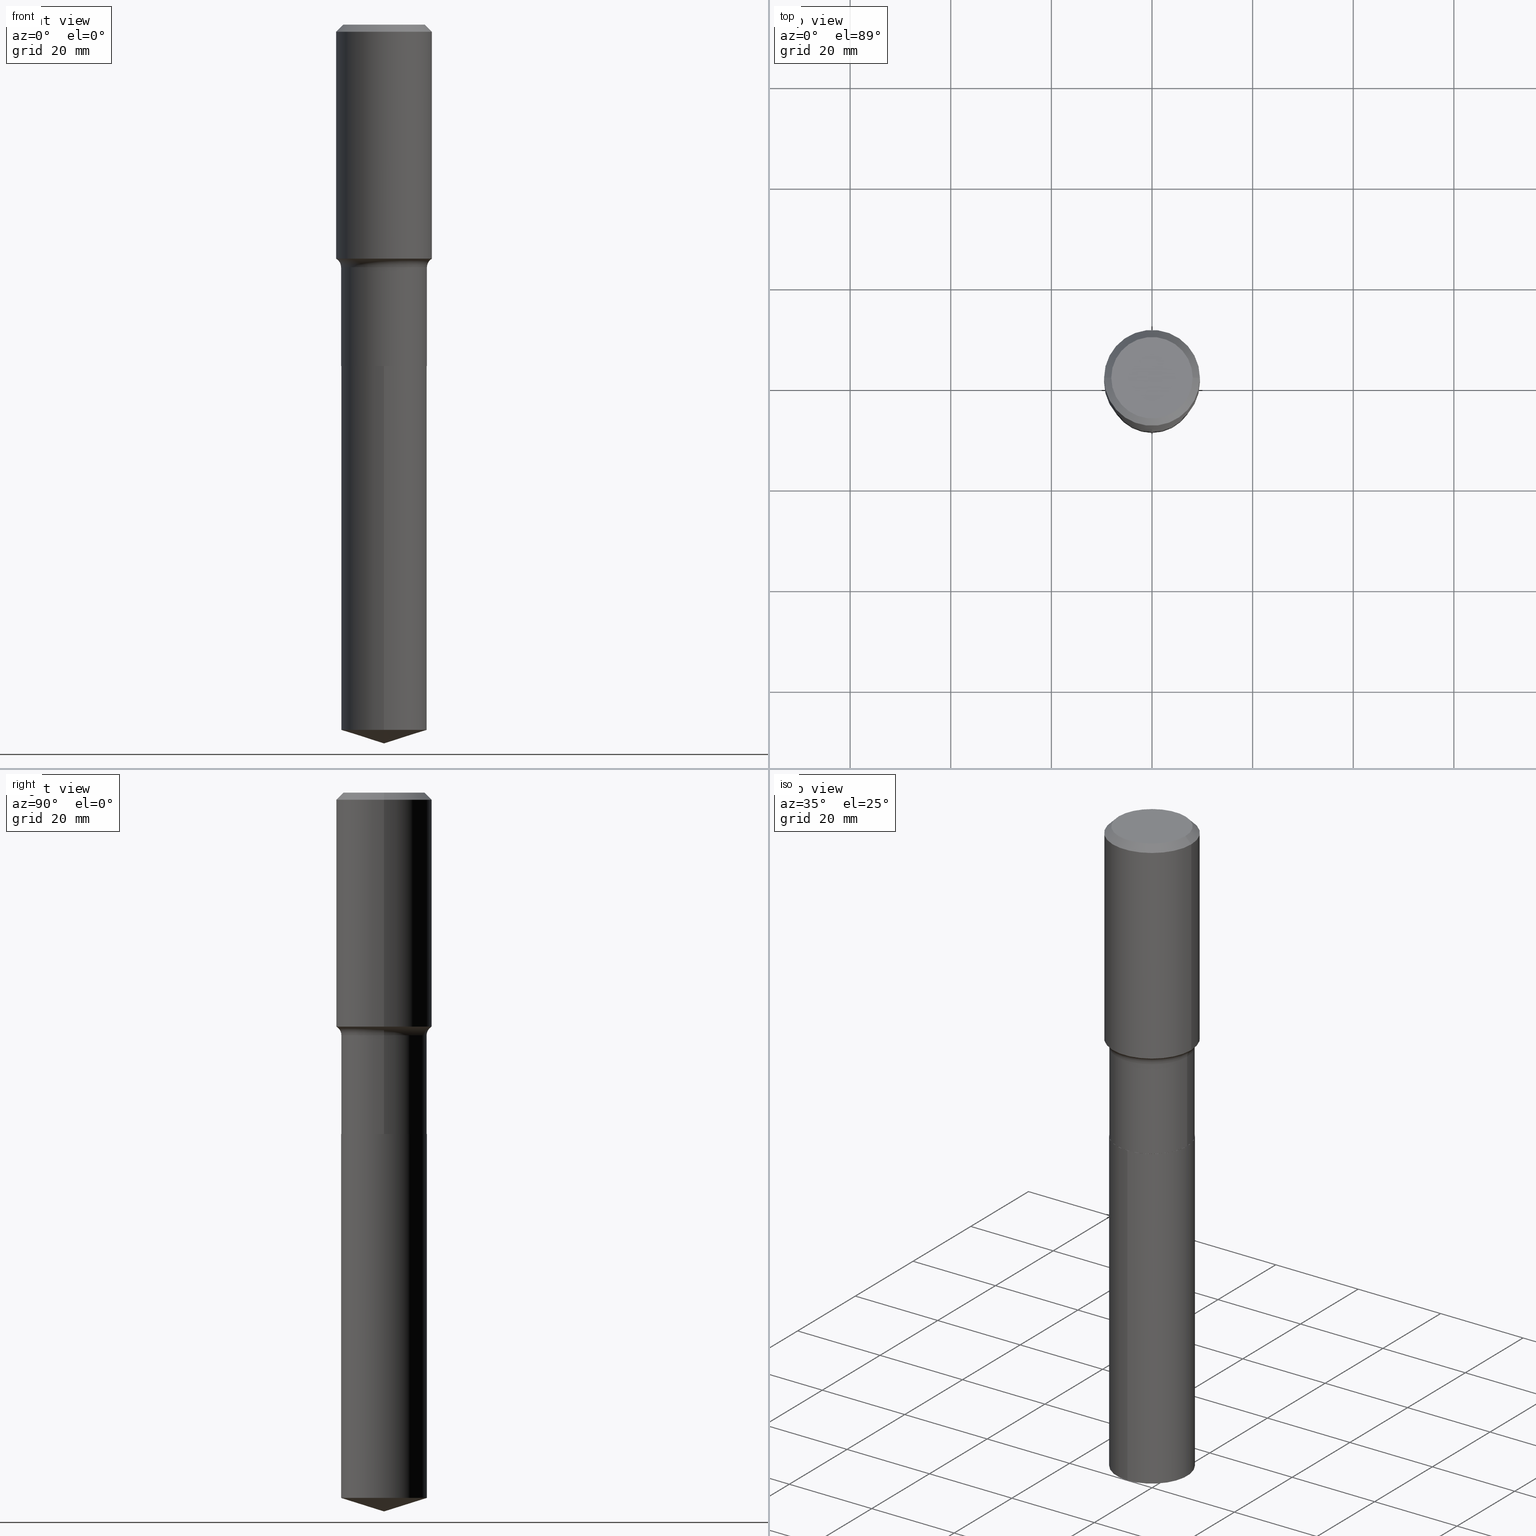
[diagram: canonical four-view strip — front | top / right | iso, engineering-drawing reading convention]
A machine part, canonical four-view strip (front | top / right | iso — engineering-drawing reading convention). The complete STEP part file that produces these views, byte-faithful:
ISO-10303-21;
HEADER;
FILE_DESCRIPTION (( 'STEP AP203' ),
    '1' );
FILE_NAME ('51595.STEP',
    '2024-04-19T13:06:22',
    ( '' ),
    ( '' ),
    'SwSTEP 2.0',
    'SolidWorks 2023',
    '' );
FILE_SCHEMA (( 'CONFIG_CONTROL_DESIGN' ));
ENDSEC;

DATA;
#1 = ORIENTED_EDGE ( 'NONE', *, *, #80, .F. ) ;
#2 = AXIS2_PLACEMENT_3D ( 'NONE', #97, #27, #213 ) ;
#3 = ORIENTED_EDGE ( 'NONE', *, *, #306, .F. ) ;
#4 = ORIENTED_EDGE ( 'NONE', *, *, #365, .T. ) ;
#5 = APPROVAL_ROLE ( '' ) ;
#6 = EDGE_CURVE ( 'NONE', #147, #392, #443, .T. ) ;
#7 = ORIENTED_EDGE ( 'NONE', *, *, #323, .T. ) ;
#8 = EDGE_CURVE ( 'NONE', #392, #299, #445, .T. ) ;
#9 = AXIS2_PLACEMENT_3D ( 'NONE', #368, #441, #215 ) ;
#10 = ORIENTED_EDGE ( 'NONE', *, *, #117, .T. ) ;
#11 = DIRECTION ( 'NONE',  ( -6.982962677686266711E-15, -1.000000000000000000, 3.491481338843145583E-15 ) ) ;
#12 = ORIENTED_EDGE ( 'NONE', *, *, #195, .T. ) ;
#13 = ORIENTED_EDGE ( 'NONE', *, *, #152, .T. ) ;
#14 = VERTEX_POINT ( 'NONE', #41 ) ;
#15 = APPROVAL ( #270, 'UNSPECIFIED' ) ;
#16 = AXIS2_PLACEMENT_3D ( 'NONE', #230, #385, #189 ) ;
#17 = VECTOR ( 'NONE', #106, 39.37007874015748143 ) ;
#18 = ORIENTED_EDGE ( 'NONE', *, *, #306, .T. ) ;
#19 = EDGE_CURVE ( 'NONE', #14, #397, #114, .T. ) ;
#20 = ORIENTED_EDGE ( 'NONE', *, *, #152, .F. ) ;
#21 = ADVANCED_FACE ( 'NONE', ( #231 ), #302, .T. ) ;
#22 = CARTESIAN_POINT ( 'NONE',  ( 2.387068320786190079E-15, 0.3359499999999805975, -5.519075371876107639 ) ) ;
#23 = ORIENTED_EDGE ( 'NONE', *, *, #282, .T. ) ;
#24 = CARTESIAN_POINT ( 'NONE',  ( -0.3359499999999999154, -5.592013982872184177E-15, -1.899200000000000221 ) ) ;
#25 = AXIS2_PLACEMENT_3D ( 'NONE', #203, #209, #355 ) ;
#26 = CONICAL_SURFACE ( 'NONE', #262, 124.8659371009150760, 1.265363707695891682 ) ;
#27 = DIRECTION ( 'NONE',  ( -2.445468806185136597E-29, 3.491481338843145583E-15, 1.000000000000000000 ) ) ;
#28 = DIRECTION ( 'NONE',  ( -2.445468806185136597E-29, 3.491481338843145583E-15, 1.000000000000000000 ) ) ;
#29 = CARTESIAN_POINT ( 'NONE',  ( 1.375576203479147498E-30, -1.963958253099280755E-16, -0.05625000000000032752 ) ) ;
#30 = PRODUCT_DEFINITION ( 'UNKNOWN', '', #94, #354 ) ;
#31 = CARTESIAN_POINT ( 'NONE',  ( 0.3354500000000000259, -1.167132381948485864E-14, -2.671899999999999942 ) ) ;
#32 = TOROIDAL_SURFACE ( 'NONE', #404, 0.4139499999999998736, 0.07799999999999999989 ) ;
#33 = ORIENTED_EDGE ( 'NONE', *, *, #74, .F. ) ;
#34 = DIRECTION ( 'NONE',  ( 1.000000000000000000, -6.982962677686267499E-15, 4.876227444496879000E-29 ) ) ;
#35 = CARTESIAN_POINT ( 'NONE',  ( 1.375576203479147498E-30, -1.963958253099280755E-16, -0.05625000000000032752 ) ) ;
#36 = COORDINATED_UNIVERSAL_TIME_OFFSET ( 5, 0, .BEHIND. ) ;
#37 = EDGE_CURVE ( 'NONE', #153, #14, #43, .T. ) ;
#38 = FACE_OUTER_BOUND ( 'NONE', #211, .T. ) ;
#39 = ORIENTED_EDGE ( 'NONE', *, *, #69, .T. ) ;
#40 = SHAPE_DEFINITION_REPRESENTATION ( #367, #363 ) ;
#41 = CARTESIAN_POINT ( 'NONE',  ( 2.387068320786192052E-15, 0.3359499999999906450, -2.671900000000001274 ) ) ;
#42 = COORDINATED_UNIVERSAL_TIME_OFFSET ( 5, 0, .BEHIND. ) ;
#43 = LINE ( 'NONE', #103, #311 ) ;
#44 = AXIS2_PLACEMENT_3D ( 'NONE', #177, #180, #79 ) ;
#45 = EDGE_LOOP ( 'NONE', ( #3, #145, #425, #39 ) ) ;
#46 = ORIENTED_EDGE ( 'NONE', *, *, #309, .T. ) ;
#47 = LINE ( 'NONE', #427, #474 ) ;
#48 = CIRCLE ( 'NONE', #174, 0.3187499999999999778 ) ;
#49 = ORIENTED_EDGE ( 'NONE', *, *, #395, .F. ) ;
#50 = FACE_OUTER_BOUND ( 'NONE', #55, .T. ) ;
#51 = DIRECTION ( 'NONE',  ( -0.7071067811864026886, 7.493145998869830357E-15, 0.7071067811866923458 ) ) ;
#52 = APPROVAL_STATUS ( 'not_yet_approved' ) ;
#53 = DIRECTION ( 'NONE',  ( 1.000000000000000000, -6.982962677686267499E-15, 4.876227444496879000E-29 ) ) ;
#54 = DIRECTION ( 'NONE',  ( -2.445293720551097683E-29, 3.491732071436344983E-15, 1.000000000000000000 ) ) ;
#55 = EDGE_LOOP ( 'NONE', ( #194, #49 ) ) ;
#56 = AXIS2_PLACEMENT_3D ( 'NONE', #73, #221, #283 ) ;
#57 = LOCAL_TIME ( 9, 6, 22.00000000000000000, #36 ) ;
#58 = LINE ( 'NONE', #89, #473 ) ;
#59 = EDGE_CURVE ( 'NONE', #486, #153, #416, .T. ) ;
#60 = ORIENTED_EDGE ( 'NONE', *, *, #6, .T. ) ;
#61 = CYLINDRICAL_SURFACE ( 'NONE', #2, 0.3359500000000000264 ) ;
#62 = DIRECTION ( 'NONE',  ( -2.438088387897960049E-29, 3.491481338843145188E-15, 1.000000000000000000 ) ) ;
#63 = APPROVAL_DATE_TIME ( #409, #265 ) ;
#64 = DIRECTION ( 'NONE',  ( -2.445293720551097683E-29, 3.491732071436344983E-15, 1.000000000000000000 ) ) ;
#65 = PLANE ( 'NONE',  #269 ) ;
#66 = CIRCLE ( 'NONE', #289, 0.3750000000000000555 ) ;
#67 = CIRCLE ( 'NONE', #351, 0.3359500000000000264 ) ;
#68 = DIRECTION ( 'NONE',  ( 2.445468806185136597E-29, -3.491481338843145583E-15, -1.000000000000000000 ) ) ;
#69 = EDGE_CURVE ( 'NONE', #299, #116, #320, .T. ) ;
#70 = ORIENTED_EDGE ( 'NONE', *, *, #69, .F. ) ;
#71 = DIRECTION ( 'NONE',  ( 1.000000000000000000, -6.982962677686266711E-15, 0.000000000000000000 ) ) ;
#72 = DATE_TIME_ROLE ( 'creation_date' ) ;
#73 = CARTESIAN_POINT ( 'NONE',  ( -7.955031918821654702E-47, 1.135767727816384474E-32, 3.252968060235159383E-18 ) ) ;
#74 = EDGE_CURVE ( 'NONE', #244, #253, #102, .T. ) ;
#75 = FACE_OUTER_BOUND ( 'NONE', #390, .T. ) ;
#76 = CONICAL_SURFACE ( 'NONE', #342, 0.3354500000000000259, 0.7853981633972434429 ) ;
#77 = CIRCLE ( 'NONE', #121, 0.3359499999999999154 ) ;
#78 = EDGE_CURVE ( 'NONE', #450, #299, #149, .T. ) ;
#79 = DIRECTION ( 'NONE',  ( 1.000000000000000000, -6.982962677686267499E-15, 0.000000000000000000 ) ) ;
#80 = EDGE_CURVE ( 'NONE', #392, #147, #300, .T. ) ;
#81 = CYLINDRICAL_SURFACE ( 'NONE', #464, 0.3750000000000001665 ) ;
#82 = DIRECTION ( 'NONE',  ( -6.982962677686265133E-15, -1.000000000000000000, 3.252684022817994463E-15 ) ) ;
#83 = AXIS2_PLACEMENT_3D ( 'NONE', #394, #198, #347 ) ;
#84 = PERSON_AND_ORGANIZATION ( #146, #274 ) ;
#85 = APPROVAL_ROLE ( '' ) ;
#86 = CARTESIAN_POINT ( 'NONE',  ( -0.3750000000000000555, 2.422215178822422188E-15, -0.05625000000000032752 ) ) ;
#87 = VECTOR ( 'NONE', #375, 39.37007874015748143 ) ;
#88 = CC_DESIGN_SECURITY_CLASSIFICATION ( #444, ( #94 ) ) ;
#89 = CARTESIAN_POINT ( 'NONE',  ( -0.3354500000000000259, -6.945373382147743700E-15, -2.671899999999999942 ) ) ;
#90 = CALENDAR_DATE ( 2024, 19, 4 ) ;
#91 = CYLINDRICAL_SURFACE ( 'NONE', #400, 0.3359500000000000264 ) ;
#92 = ADVANCED_FACE ( 'NONE', ( #131 ), #191, .F. ) ;
#93 = CIRCLE ( 'NONE', #199, 0.3354500000000000259 ) ;
#94 = PRODUCT_DEFINITION_FORMATION_WITH_SPECIFIED_SOURCE ( 'ANY', '', #434, .NOT_KNOWN. ) ;
#95 = DIRECTION ( 'NONE',  ( -6.982962677686265922E-15, -1.000000000000000000, 3.500519750498704038E-15 ) ) ;
#96 = LINE ( 'NONE', #357, #185 ) ;
#97 = CARTESIAN_POINT ( 'NONE',  ( 0.000000000000000000, 0.000000000000000000, 0.000000000000000000 ) ) ;
#98 = DIRECTION ( 'NONE',  ( 1.000000000000000000, -6.982962677686266711E-15, 0.000000000000000000 ) ) ;
#99 = CC_DESIGN_DATE_AND_TIME_ASSIGNMENT ( #181, #388, ( #444 ) ) ;
#100 = FACE_OUTER_BOUND ( 'NONE', #475, .T. ) ;
#101 = PRODUCT_RELATED_PRODUCT_CATEGORY ( 'detail', '', ( #434 ) ) ;
#102 = CIRCLE ( 'NONE', #196, 0.3359500000000000264 ) ;
#103 = CARTESIAN_POINT ( 'NONE',  ( 2.387068320786121448E-15, 0.3359499999999906450, -2.671900000000001274 ) ) ;
#104 = DIRECTION ( 'NONE',  ( -2.445468806185136597E-29, 3.491481338843145583E-15, 1.000000000000000000 ) ) ;
#105 = FACE_OUTER_BOUND ( 'NONE', #369, .T. ) ;
#106 = DIRECTION ( 'NONE',  ( -2.445468806185136877E-29, 3.491481338843145188E-15, 1.000000000000000000 ) ) ;
#107 = DIRECTION ( 'NONE',  ( -6.982962677686265133E-15, -1.000000000000000000, 3.252684022817994463E-15 ) ) ;
#108 = SECURITY_CLASSIFICATION_LEVEL ( 'unclassified' ) ;
#109 = ADVANCED_FACE ( 'NONE', ( #50 ), #430, .F. ) ;
#110 = CC_DESIGN_APPROVAL ( #265, ( #30 ) ) ;
#111 = VERTEX_POINT ( 'NONE', #371 ) ;
#112 = CC_DESIGN_PERSON_AND_ORGANIZATION_ASSIGNMENT ( #267, #383, ( #444 ) ) ;
#113 = ORIENTED_EDGE ( 'NONE', *, *, #129, .F. ) ;
#114 = CIRCLE ( 'NONE', #148, 0.3359500000000000264 ) ;
#115 = ORIENTED_EDGE ( 'NONE', *, *, #59, .F. ) ;
#116 = VERTEX_POINT ( 'NONE', #163 ) ;
#117 = EDGE_CURVE ( 'NONE', #457, #153, #331, .T. ) ;
#118 = ORIENTED_EDGE ( 'NONE', *, *, #478, .T. ) ;
#119 = DIRECTION ( 'NONE',  ( -1.000000000000000000, 6.982962677686265922E-15, 0.000000000000000000 ) ) ;
#120 = AXIS2_PLACEMENT_3D ( 'NONE', #35, #490, #119 ) ;
#121 = AXIS2_PLACEMENT_3D ( 'NONE', #256, #268, #178 ) ;
#122 = CARTESIAN_POINT ( 'NONE',  ( 6.534048103246065700E-29, -9.328888989255000747E-15, -2.671899999999999942 ) ) ;
#123 = CARTESIAN_POINT ( 'NONE',  ( -0.3750000000000003886, -3.730535895525183379E-15, -1.831621175653907807 ) ) ;
#124 = DIRECTION ( 'NONE',  ( -2.445468806185136597E-29, 3.491481338843145583E-15, 1.000000000000000000 ) ) ;
#125 = APPROVAL_ROLE ( '' ) ;
#126 = LINE ( 'NONE', #161, #362 ) ;
#127 =( NAMED_UNIT ( * ) SI_UNIT ( $, .STERADIAN. ) SOLID_ANGLE_UNIT ( ) );
#128 = MECHANICAL_CONTEXT ( 'NONE', #480, 'mechanical' ) ;
#129 = EDGE_CURVE ( 'NONE', #159, #244, #488, .T. ) ;
#130 = CARTESIAN_POINT ( 'NONE',  ( 1.375576203479147498E-30, -1.963958253099280755E-16, -0.05625000000000032752 ) ) ;
#131 = FACE_OUTER_BOUND ( 'NONE', #257, .T. ) ;
#132 = CIRCLE ( 'NONE', #273, 0.3359500000000000264 ) ;
#133 =( GEOMETRIC_REPRESENTATION_CONTEXT ( 3 ) GLOBAL_UNCERTAINTY_ASSIGNED_CONTEXT ( ( #170 ) ) GLOBAL_UNIT_ASSIGNED_CONTEXT ( ( #248, #187, #127 ) ) REPRESENTATION_CONTEXT ( 'NONE', 'WORKASPACE' ) );
#134 = CARTESIAN_POINT ( 'NONE',  ( 6.534048103246065700E-29, -9.328888989255000747E-15, -2.671899999999999942 ) ) ;
#135 = ADVANCED_FACE ( 'NONE', ( #100 ), #32, .F. ) ;
#136 = PERSON_AND_ORGANIZATION ( #146, #274 ) ;
#137 = FACE_OUTER_BOUND ( 'NONE', #295, .T. ) ;
#138 = PERSON_AND_ORGANIZATION_ROLE ( 'creator' ) ;
#139 = CALENDAR_DATE ( 2024, 19, 4 ) ;
#140 = CIRCLE ( 'NONE', #373, 0.3359500000000000264 ) ;
#141 = APPROVAL_PERSON_ORGANIZATION ( #84, #15, #5 ) ;
#142 = EDGE_LOOP ( 'NONE', ( #435, #324, #151, #235 ) ) ;
#143 = EDGE_LOOP ( 'NONE', ( #346, #18, #13, #160 ) ) ;
#144 = CALENDAR_DATE ( 2024, 19, 4 ) ;
#145 = ORIENTED_EDGE ( 'NONE', *, *, #429, .F. ) ;
#146 = PERSON ( 'UNSPECIFIED', 'UNSPECIFIED', 'UNSPECIFIED', ('UNSPECIFIED'), ('UNSPECIFIED'), ('UNSPECIFIED') ) ;
#147 = VERTEX_POINT ( 'NONE', #261 ) ;
#148 = AXIS2_PLACEMENT_3D ( 'NONE', #452, #263, #82 ) ;
#149 = LINE ( 'NONE', #86, #387 ) ;
#150 = CIRCLE ( 'NONE', #217, 0.3187499999999999778 ) ;
#151 = ORIENTED_EDGE ( 'NONE', *, *, #129, .T. ) ;
#152 = EDGE_CURVE ( 'NONE', #116, #299, #66, .T. ) ;
#153 = VERTEX_POINT ( 'NONE', #22 ) ;
#154 = DIRECTION ( 'NONE',  ( -2.445468806185136597E-29, 3.491481338843145583E-15, 1.000000000000000000 ) ) ;
#155 = AXIS2_PLACEMENT_3D ( 'NONE', #122, #62, #303 ) ;
#156 = LOCAL_TIME ( 9, 6, 22.00000000000000000, #227 ) ;
#157 = DIRECTION ( 'NONE',  ( -2.445293720551097683E-29, 3.491732071436344983E-15, 1.000000000000000000 ) ) ;
#158 = CC_DESIGN_PERSON_AND_ORGANIZATION_ASSIGNMENT ( #438, #481, ( #434 ) ) ;
#159 = VERTEX_POINT ( 'NONE', #483 ) ;
#160 = ORIENTED_EDGE ( 'NONE', *, *, #78, .F. ) ;
#161 = CARTESIAN_POINT ( 'NONE',  ( 0.3359500000000000264, -2.345926311568701298E-15, 1.638151587828644602E-29 ) ) ;
#162 = DIRECTION ( 'NONE',  ( -6.982962677686265133E-15, -1.000000000000000000, 3.252684022817994463E-15 ) ) ;
#163 = CARTESIAN_POINT ( 'NONE',  ( 0.3750000000000000555, -2.815006829442278240E-15, -0.05625000000000032752 ) ) ;
#164 = DIRECTION ( 'NONE',  ( -2.445468806185136597E-29, 3.491481338843145583E-15, 1.000000000000000000 ) ) ;
#165 = ADVANCED_FACE ( 'NONE', ( #477 ), #76, .T. ) ;
#166 = AXIS2_PLACEMENT_3D ( 'NONE', #134, #124, #287 ) ;
#167 = ORIENTED_EDGE ( 'NONE', *, *, #74, .T. ) ;
#168 = LOCAL_TIME ( 9, 6, 22.00000000000000000, #42 ) ;
#169 = PERSON_AND_ORGANIZATION ( #146, #274 ) ;
#170 = UNCERTAINTY_MEASURE_WITH_UNIT (LENGTH_MEASURE( 1.000000000000000082E-05 ), #248, 'distance_accuracy_value', 'NONE');
#171 = FACE_OUTER_BOUND ( 'NONE', #460, .T. ) ;
#172 = DIRECTION ( 'NONE',  ( 1.000000000000000000, -6.982962677686265922E-15, 0.000000000000000000 ) ) ;
#173 = AXIS2_PLACEMENT_3D ( 'NONE', #304, #448, #419 ) ;
#174 = AXIS2_PLACEMENT_3D ( 'NONE', #224, #379, #34 ) ;
#175 = EDGE_CURVE ( 'NONE', #159, #403, #350, .T. ) ;
#176 = CARTESIAN_POINT ( 'NONE',  ( -8.251616133150385207E-28, 1.178294436225684148E-13, 33.74507874015748143 ) ) ;
#177 = CARTESIAN_POINT ( 'NONE',  ( 4.479172449809777762E-29, -6.395071154625561442E-15, -1.831621175653907807 ) ) ;
#178 = DIRECTION ( 'NONE',  ( 1.000000000000000000, -6.982962677686263555E-15, 0.000000000000000000 ) ) ;
#179 = CARTESIAN_POINT ( 'NONE',  ( 6.534048103246065700E-29, -9.328888989255000747E-15, -2.671899999999999942 ) ) ;
#180 = DIRECTION ( 'NONE',  ( -2.445468806185136597E-29, 3.491481338843145583E-15, 1.000000000000000000 ) ) ;
#181 = DATE_AND_TIME ( #139, #57 ) ;
#182 = ADVANCED_FACE ( 'NONE', ( #378 ), #420, .T. ) ;
#183 = COORDINATED_UNIVERSAL_TIME_OFFSET ( 5, 0, .BEHIND. ) ;
#184 = CC_DESIGN_PERSON_AND_ORGANIZATION_ASSIGNMENT ( #136, #138, ( #94 ) ) ;
#185 = VECTOR ( 'NONE', #413, 39.37007874015748854 ) ;
#186 = AXIS2_PLACEMENT_3D ( 'NONE', #352, #11, #330 ) ;
#187 =( NAMED_UNIT ( * ) PLANE_ANGLE_UNIT ( ) SI_UNIT ( $, .RADIAN. ) );
#188 = DIRECTION ( 'NONE',  ( 1.000000000000000000, -6.982962677686266711E-15, 4.876176775795935793E-29 ) ) ;
#189 = DIRECTION ( 'NONE',  ( 1.000000000000000000, -6.982962677686265922E-15, 0.000000000000000000 ) ) ;
#190 = VERTEX_POINT ( 'NONE', #200 ) ;
#191 = PLANE ( 'NONE',  #56 ) ;
#192 = DIRECTION ( 'NONE',  ( -2.445468806185136597E-29, 3.491481338843145583E-15, 1.000000000000000000 ) ) ;
#193 = LINE ( 'NONE', #459, #226 ) ;
#194 = ORIENTED_EDGE ( 'NONE', *, *, #175, .F. ) ;
#195 = EDGE_CURVE ( 'NONE', #153, #457, #140, .T. ) ;
#196 = AXIS2_PLACEMENT_3D ( 'NONE', #319, #192, #277 ) ;
#197 = DIRECTION ( 'NONE',  ( 0.7071067811865456854, -7.319954787623249734E-15, -0.7071067811865493491 ) ) ;
#198 = DIRECTION ( 'NONE',  ( -2.445468806185136597E-29, 3.491481338843145583E-15, 1.000000000000000000 ) ) ;
#199 = AXIS2_PLACEMENT_3D ( 'NONE', #219, #254, #329 ) ;
#200 = CARTESIAN_POINT ( 'NONE',  ( 0.3187499999999999778, -2.477933155631963807E-15, 6.505936120486764667E-18 ) ) ;
#201 = ORIENTED_EDGE ( 'NONE', *, *, #8, .T. ) ;
#202 = ORIENTED_EDGE ( 'NONE', *, *, #291, .T. ) ;
#203 = CARTESIAN_POINT ( 'NONE',  ( 0.000000000000000000, 0.000000000000000000, 0.000000000000000000 ) ) ;
#204 = EDGE_CURVE ( 'NONE', #392, #401, #251, .T. ) ;
#205 = CC_DESIGN_PERSON_AND_ORGANIZATION_ASSIGNMENT ( #305, #491, ( #94 ) ) ;
#206 = VECTOR ( 'NONE', #313, 39.37007874015748143 ) ;
#207 = CIRCLE ( 'NONE', #186, 0.07800000000000002764 ) ;
#208 = ORIENTED_EDGE ( 'NONE', *, *, #259, .T. ) ;
#209 = DIRECTION ( 'NONE',  ( -2.445468806185136597E-29, 3.491481338843145583E-15, 1.000000000000000000 ) ) ;
#210 = CARTESIAN_POINT ( 'NONE',  ( 6.534048103246065700E-29, -9.328888989255000747E-15, -2.671899999999999942 ) ) ;
#211 = EDGE_LOOP ( 'NONE', ( #60, #201, #20, #423 ) ) ;
#212 = ADVANCED_FACE ( 'NONE', ( #75 ), #225, .T. ) ;
#213 = DIRECTION ( 'NONE',  ( 1.000000000000000000, -6.982962677686265922E-15, 4.876176775795935232E-29 ) ) ;
#214 = ORIENTED_EDGE ( 'NONE', *, *, #19, .T. ) ;
#215 = DIRECTION ( 'NONE',  ( -6.982962677686265133E-15, -1.000000000000000000, 3.252684022817994463E-15 ) ) ;
#216 = CONICAL_SURFACE ( 'NONE', #120, 0.3750000000000000555, 0.7853981633974457255 ) ;
#217 = AXIS2_PLACEMENT_3D ( 'NONE', #359, #402, #53 ) ;
#218 = CARTESIAN_POINT ( 'NONE',  ( 6.532825368842972898E-29, -9.327143248585578454E-15, -2.671399999999999775 ) ) ;
#219 = CARTESIAN_POINT ( 'NONE',  ( 6.534048103246065700E-29, -9.328888989255000747E-15, -2.671899999999999942 ) ) ;
#220 = CARTESIAN_POINT ( 'NONE',  ( 6.534048103246065700E-29, -9.328888989255000747E-15, -2.671899999999999942 ) ) ;
#221 = DIRECTION ( 'NONE',  ( 2.438088387897960049E-29, -3.491481338843145188E-15, -1.000000000000000000 ) ) ;
#222 = DIRECTION ( 'NONE',  ( 1.000000000000000000, -6.982962677686265922E-15, 4.883557194083112901E-29 ) ) ;
#223 = DIRECTION ( 'NONE',  ( -2.445468806185136877E-29, 3.491481338843145188E-15, 1.000000000000000000 ) ) ;
#224 = CARTESIAN_POINT ( 'NONE',  ( -1.591006383764330940E-46, 2.271535455632768948E-32, 6.505936120470318766E-18 ) ) ;
#225 = CYLINDRICAL_SURFACE ( 'NONE', #360, 0.3359500000000000264 ) ;
#226 = VECTOR ( 'NONE', #239, 39.37007874015748143 ) ;
#227 = COORDINATED_UNIVERSAL_TIME_OFFSET ( 5, 0, .BEHIND. ) ;
#228 = CARTESIAN_POINT ( 'NONE',  ( 0.000000000000000000, 0.000000000000000000, 0.000000000000000000 ) ) ;
#229 = APPROVAL_DATE_TIME ( #489, #485 ) ;
#230 = CARTESIAN_POINT ( 'NONE',  ( 1.375576203479147498E-30, -1.963958253099280755E-16, -0.05625000000000032752 ) ) ;
#231 = FACE_OUTER_BOUND ( 'NONE', #428, .T. ) ;
#232 = ORIENTED_EDGE ( 'NONE', *, *, #19, .F. ) ;
#233 = LOCAL_TIME ( 9, 6, 22.00000000000000000, #183 ) ;
#234 = ADVANCED_FACE ( 'NONE', ( #339 ), #216, .T. ) ;
#235 = ORIENTED_EDGE ( 'NONE', *, *, #259, .F. ) ;
#236 = ORIENTED_EDGE ( 'NONE', *, *, #323, .F. ) ;
#237 = MANIFOLD_SOLID_BREP ( 'Body-Move/Copy2[2]', #399 ) ;
#238 = DIRECTION ( 'NONE',  ( -0.7071067811865456854, 2.468850131082237733E-15, -0.7071067811865493491 ) ) ;
#239 = DIRECTION ( 'NONE',  ( -2.445468806185136877E-29, 3.491481338843145188E-15, 1.000000000000000000 ) ) ;
#240 = ORIENTED_EDGE ( 'NONE', *, *, #411, .T. ) ;
#241 = DIMENSIONAL_EXPONENTS ( 1.000000000000000000, 0.000000000000000000, 0.000000000000000000, 0.000000000000000000, 0.000000000000000000, 0.000000000000000000, 0.000000000000000000 ) ;
#242 = CIRCLE ( 'NONE', #463, 0.3359499999999999154 ) ;
#243 = APPROVAL_PERSON_ORGANIZATION ( #315, #485, #85 ) ;
#244 = VERTEX_POINT ( 'NONE', #280 ) ;
#245 = EDGE_CURVE ( 'NONE', #403, #253, #58, .T. ) ;
#246 = ORIENTED_EDGE ( 'NONE', *, *, #37, .T. ) ;
#247 = ORIENTED_EDGE ( 'NONE', *, *, #255, .T. ) ;
#248 =( CONVERSION_BASED_UNIT ( 'INCH', #284 ) LENGTH_UNIT ( ) NAMED_UNIT ( #241 ) );
#249 = DIRECTION ( 'NONE',  ( 6.982962677686265922E-15, 1.000000000000000000, -3.491732071436345377E-15 ) ) ;
#250 = CARTESIAN_POINT ( 'NONE',  ( 1.349622816140244701E-28, -1.927046254823850820E-14, -5.519075371876106750 ) ) ;
#251 = CIRCLE ( 'NONE', #173, 0.07800000000000002764 ) ;
#252 = ORIENTED_EDGE ( 'NONE', *, *, #431, .F. ) ;
#253 = VERTEX_POINT ( 'NONE', #466 ) ;
#254 = DIRECTION ( 'NONE',  ( -2.445468806185136597E-29, 3.491481338843145583E-15, 1.000000000000000000 ) ) ;
#255 = EDGE_CURVE ( 'NONE', #486, #457, #96, .T. ) ;
#256 = CARTESIAN_POINT ( 'NONE',  ( 4.644434356706812509E-29, -6.631021358730902635E-15, -1.899200000000000221 ) ) ;
#257 = EDGE_LOOP ( 'NONE', ( #349, #202 ) ) ;
#258 = CARTESIAN_POINT ( 'NONE',  ( -2.345926311568635428E-15, -0.3359500000000093523, -2.671899999999999054 ) ) ;
#259 = EDGE_CURVE ( 'NONE', #253, #244, #132, .T. ) ;
#260 = PERSON_AND_ORGANIZATION_ROLE ( 'creator' ) ;
#261 = CARTESIAN_POINT ( 'NONE',  ( 0.3750000000000003886, -9.013682158757916981E-15, -1.831621175653907807 ) ) ;
#262 = AXIS2_PLACEMENT_3D ( 'NONE', #476, #64, #370 ) ;
#263 = DIRECTION ( 'NONE',  ( -2.445293720551097683E-29, 3.491732071436344983E-15, 1.000000000000000000 ) ) ;
#264 = CARTESIAN_POINT ( 'NONE',  ( 0.000000000000000000, 0.000000000000000000, 0.000000000000000000 ) ) ;
#265 = APPROVAL ( #52, 'UNSPECIFIED' ) ;
#266 = DIRECTION ( 'NONE',  ( 6.776566513254256560E-15, 0.9537169507482287090, 0.3007057995042671794 ) ) ;
#267 = PERSON_AND_ORGANIZATION ( #146, #274 ) ;
#268 = DIRECTION ( 'NONE',  ( -2.445468806185136597E-29, 3.491481338843145583E-15, 1.000000000000000000 ) ) ;
#269 = AXIS2_PLACEMENT_3D ( 'NONE', #285, #433, #249 ) ;
#270 = APPROVAL_STATUS ( 'not_yet_approved' ) ;
#271 = ORIENTED_EDGE ( 'NONE', *, *, #431, .T. ) ;
#272 = LINE ( 'NONE', #487, #17 ) ;
#273 = AXIS2_PLACEMENT_3D ( 'NONE', #218, #28, #442 ) ;
#274 = ORGANIZATION ( 'UNSPECIFIED', 'UNSPECIFIED', '' ) ;
#275 = ORIENTED_EDGE ( 'NONE', *, *, #365, .F. ) ;
#276 = APPROVAL_DATE_TIME ( #393, #15 ) ;
#277 = DIRECTION ( 'NONE',  ( 1.000000000000000000, -6.982962677686265133E-15, 0.000000000000000000 ) ) ;
#278 = APPROVAL_STATUS ( 'not_yet_approved' ) ;
#279 = ADVANCED_FACE ( 'NONE', ( #171 ), #482, .T. ) ;
#280 = CARTESIAN_POINT ( 'NONE',  ( 0.3359500000000000264, -1.167306956015427936E-14, -2.671399999999999775 ) ) ;
#281 = AXIS2_PLACEMENT_3D ( 'NONE', #228, #384, #340 ) ;
#282 = EDGE_CURVE ( 'NONE', #111, #401, #242, .T. ) ;
#283 = DIRECTION ( 'NONE',  ( -1.000000000000000000, 6.982962677686265922E-15, -4.876176775795935793E-29 ) ) ;
#284 = LENGTH_MEASURE_WITH_UNIT ( LENGTH_MEASURE( 0.02539999999999999897 ), #447 );
#285 = CARTESIAN_POINT ( 'NONE',  ( 6.534048103246065700E-29, -9.328888989255000747E-15, -2.671899999999999942 ) ) ;
#286 = DIRECTION ( 'NONE',  ( 1.000000000000000000, -6.982962677686263555E-15, 0.000000000000000000 ) ) ;
#287 = DIRECTION ( 'NONE',  ( 1.000000000000000000, -6.982962677686266711E-15, 0.000000000000000000 ) ) ;
#288 = EDGE_CURVE ( 'NONE', #244, #111, #126, .T. ) ;
#289 = AXIS2_PLACEMENT_3D ( 'NONE', #29, #470, #172 ) ;
#290 = CONICAL_SURFACE ( 'NONE', #343, 124.8659371009150760, 1.265363707695891682 ) ;
#291 = EDGE_CURVE ( 'NONE', #190, #450, #150, .T. ) ;
#292 = EDGE_LOOP ( 'NONE', ( #1, #449, #271, #461 ) ) ;
#293 = CARTESIAN_POINT ( 'NONE',  ( -2.345926311568635428E-15, -0.3359500000000093523, -2.671899999999999054 ) ) ;
#294 = CARTESIAN_POINT ( 'NONE',  ( 6.534048103246065700E-29, -9.328888989255000747E-15, -2.671899999999999942 ) ) ;
#295 = EDGE_LOOP ( 'NONE', ( #462, #405, #432 ) ) ;
#296 = CARTESIAN_POINT ( 'NONE',  ( -0.3354500000000000259, -6.942724154973632499E-15, -2.671899999999999942 ) ) ;
#297 = PERSON_AND_ORGANIZATION ( #146, #274 ) ;
#298 = CC_DESIGN_DATE_AND_TIME_ASSIGNMENT ( #418, #72, ( #30 ) ) ;
#299 = VERTEX_POINT ( 'NONE', #361 ) ;
#300 = CIRCLE ( 'NONE', #83, 0.3750000000000002776 ) ;
#301 = CC_DESIGN_APPROVAL ( #485, ( #94 ) ) ;
#302 = CYLINDRICAL_SURFACE ( 'NONE', #281, 0.3750000000000001665 ) ;
#303 = DIRECTION ( 'NONE',  ( 1.000000000000000000, -6.982962677686265922E-15, 4.876176775795935793E-29 ) ) ;
#304 = CARTESIAN_POINT ( 'NONE',  ( -0.4139499999999998736, -3.689729704051969208E-15, -1.899200000000000221 ) ) ;
#305 = PERSON_AND_ORGANIZATION ( #146, #274 ) ;
#306 = EDGE_CURVE ( 'NONE', #190, #116, #47, .T. ) ;
#307 = CARTESIAN_POINT ( 'NONE',  ( -0.3750000000000001665, 2.664535259100376880E-15, -1.844600658845590439E-29 ) ) ;
#308 = CARTESIAN_POINT ( 'NONE',  ( -2.345926311568565614E-15, -0.3359500000000191222, -5.519075371876105862 ) ) ;
#309 = EDGE_CURVE ( 'NONE', #147, #111, #207, .T. ) ;
#310 = CARTESIAN_POINT ( 'NONE',  ( 1.375572100501698652E-28, -1.963965303699790600E-14, -5.625000000000000000 ) ) ;
#311 = VECTOR ( 'NONE', #492, 39.37007874015748143 ) ;
#312 = CC_DESIGN_APPROVAL ( #15, ( #444 ) ) ;
#313 = DIRECTION ( 'NONE',  ( -2.445468806185136877E-29, 3.491481338843145188E-15, 1.000000000000000000 ) ) ;
#314 = CARTESIAN_POINT ( 'NONE',  ( 0.000000000000000000, 0.000000000000000000, 0.000000000000000000 ) ) ;
#315 = PERSON_AND_ORGANIZATION ( #146, #274 ) ;
#316 = CLOSED_SHELL ( 'NONE', ( #326, #456, #341, #212, #410 ) ) ;
#317 = CONICAL_SURFACE ( 'NONE', #380, 0.3750000000000000555, 0.7853981633974457255 ) ;
#318 = EDGE_LOOP ( 'NONE', ( #7, #214 ) ) ;
#319 = CARTESIAN_POINT ( 'NONE',  ( 6.532825368842972898E-29, -9.327143248585578454E-15, -2.671399999999999775 ) ) ;
#320 = CIRCLE ( 'NONE', #16, 0.3750000000000000555 ) ;
#321 = LINE ( 'NONE', #258, #437 ) ;
#322 = DIRECTION ( 'NONE',  ( -6.982962677686265133E-15, -1.000000000000000000, 3.252684022817994463E-15 ) ) ;
#323 = EDGE_CURVE ( 'NONE', #397, #14, #67, .T. ) ;
#324 = ORIENTED_EDGE ( 'NONE', *, *, #395, .T. ) ;
#325 = DIRECTION ( 'NONE',  ( -2.445293720551097683E-29, 3.491732071436345377E-15, 1.000000000000000000 ) ) ;
#326 = ADVANCED_FACE ( 'NONE', ( #467 ), #91, .T. ) ;
#327 = ORIENTED_EDGE ( 'NONE', *, *, #195, .F. ) ;
#328 = CARTESIAN_POINT ( 'NONE',  ( 4.644434356706812509E-29, -6.631021358730902635E-15, -1.899200000000000221 ) ) ;
#329 = DIRECTION ( 'NONE',  ( 1.000000000000000000, -6.982962677686266711E-15, 0.000000000000000000 ) ) ;
#330 = DIRECTION ( 'NONE',  ( 1.000000000000000000, -6.982962677686255667E-15, 0.000000000000000000 ) ) ;
#331 = CIRCLE ( 'NONE', #9, 0.3359500000000000264 ) ;
#332 = EDGE_LOOP ( 'NONE', ( #167, #240, #408, #344 ) ) ;
#333 = DIRECTION ( 'NONE',  ( -2.445468806185136597E-29, 3.491481338843145583E-15, 1.000000000000000000 ) ) ;
#334 = ORIENTED_EDGE ( 'NONE', *, *, #175, .T. ) ;
#335 = FACE_OUTER_BOUND ( 'NONE', #45, .T. ) ;
#336 = APPLICATION_PROTOCOL_DEFINITION ( 'international standard', 'config_control_design', 1994, #345 ) ;
#337 = ORIENTED_EDGE ( 'NONE', *, *, #80, .T. ) ;
#338 = ADVANCED_FACE ( 'NONE', ( #38 ), #81, .T. ) ;
#339 = FACE_OUTER_BOUND ( 'NONE', #143, .T. ) ;
#340 = DIRECTION ( 'NONE',  ( 1.000000000000000000, -6.982962677686266711E-15, 4.876176775795935793E-29 ) ) ;
#341 = ADVANCED_FACE ( 'NONE', ( #105 ), #290, .T. ) ;
#342 = AXIS2_PLACEMENT_3D ( 'NONE', #294, #104, #98 ) ;
#343 = AXIS2_PLACEMENT_3D ( 'NONE', #176, #377, #95 ) ;
#344 = ORIENTED_EDGE ( 'NONE', *, *, #288, .F. ) ;
#345 = APPLICATION_CONTEXT ( 'configuration controlled 3d designs of mechanical parts and assemblies' ) ;
#346 = ORIENTED_EDGE ( 'NONE', *, *, #291, .F. ) ;
#347 = DIRECTION ( 'NONE',  ( 1.000000000000000000, -6.982962677686267499E-15, 0.000000000000000000 ) ) ;
#348 = ORIENTED_EDGE ( 'NONE', *, *, #288, .T. ) ;
#349 = ORIENTED_EDGE ( 'NONE', *, *, #429, .T. ) ;
#350 = CIRCLE ( 'NONE', #484, 0.3354500000000000259 ) ;
#351 = AXIS2_PLACEMENT_3D ( 'NONE', #220, #157, #322 ) ;
#352 = CARTESIAN_POINT ( 'NONE',  ( 0.4139499999999998736, -9.521618759159133163E-15, -1.899200000000000221 ) ) ;
#353 = ORIENTED_EDGE ( 'NONE', *, *, #204, .F. ) ;
#354 = DESIGN_CONTEXT ( 'detailed design', #345, 'design' ) ;
#355 = DIRECTION ( 'NONE',  ( 1.000000000000000000, -6.982962677686265922E-15, 4.876176775795935232E-29 ) ) ;
#356 = ORIENTED_EDGE ( 'NONE', *, *, #411, .F. ) ;
#357 = CARTESIAN_POINT ( 'NONE',  ( 1.375477717809992292E-28, -1.964099290182944097E-14, -5.625000000000000000 ) ) ;
#358 = CARTESIAN_POINT ( 'NONE',  ( 4.644434356706812509E-29, -6.631021358730902635E-15, -1.899200000000000221 ) ) ;
#359 = CARTESIAN_POINT ( 'NONE',  ( -1.591006383764330940E-46, 2.271535455632768948E-32, 6.505936120470318766E-18 ) ) ;
#360 = AXIS2_PLACEMENT_3D ( 'NONE', #179, #382, #107 ) ;
#361 = CARTESIAN_POINT ( 'NONE',  ( -0.3750000000000000555, -6.311982308673678540E-16, -0.05625000000000032752 ) ) ;
#362 = VECTOR ( 'NONE', #223, 39.37007874015748143 ) ;
#363 = ADVANCED_BREP_SHAPE_REPRESENTATION ( '51595', ( #406, #237, #426 ), #133 ) ;
#364 = ORIENTED_EDGE ( 'NONE', *, *, #6, .F. ) ;
#365 = EDGE_CURVE ( 'NONE', #457, #397, #321, .T. ) ;
#366 = DIRECTION ( 'NONE',  ( -2.445293720551097683E-29, 3.491732071436344983E-15, 1.000000000000000000 ) ) ;
#367 = PRODUCT_DEFINITION_SHAPE ( 'NONE', 'NONE',  #30 ) ;
#368 = CARTESIAN_POINT ( 'NONE',  ( 1.349622816140244701E-28, -1.927046254823850820E-14, -5.519075371876106750 ) ) ;
#369 = EDGE_LOOP ( 'NONE', ( #115, #247, #327 ) ) ;
#370 = DIRECTION ( 'NONE',  ( -6.982962677686265922E-15, -1.000000000000000000, 3.500519750498704038E-15 ) ) ;
#371 = CARTESIAN_POINT ( 'NONE',  ( 0.3359499999999999154, -8.976947670299603539E-15, -1.899200000000000221 ) ) ;
#372 = DIRECTION ( 'NONE',  ( 1.000000000000000000, -6.982962677686265922E-15, 4.883557194083112901E-29 ) ) ;
#373 = AXIS2_PLACEMENT_3D ( 'NONE', #250, #54, #391 ) ;
#374 = FACE_OUTER_BOUND ( 'NONE', #332, .T. ) ;
#375 = DIRECTION ( 'NONE',  ( 0.7071067811864026886, -2.468850131080739687E-15, 0.7071067811866923458 ) ) ;
#376 = ADVANCED_FACE ( 'NONE', ( #468 ), #451, .F. ) ;
#377 = DIRECTION ( 'NONE',  ( -2.445293720551097683E-29, 3.491732071436344983E-15, 1.000000000000000000 ) ) ;
#378 = FACE_OUTER_BOUND ( 'NONE', #453, .T. ) ;
#379 = DIRECTION ( 'NONE',  ( -2.445468806185136597E-29, 3.491481338843145583E-15, 1.000000000000000000 ) ) ;
#380 = AXIS2_PLACEMENT_3D ( 'NONE', #130, #68, #454 ) ;
#381 = DIRECTION ( 'NONE',  ( 1.000000000000000000, 0.000000000000000000, 0.000000000000000000 ) ) ;
#382 = DIRECTION ( 'NONE',  ( -2.445293720551097683E-29, 3.491732071436344983E-15, 1.000000000000000000 ) ) ;
#383 = PERSON_AND_ORGANIZATION_ROLE ( 'classification_officer' ) ;
#384 = DIRECTION ( 'NONE',  ( -2.445468806185136597E-29, 3.491481338843145583E-15, 1.000000000000000000 ) ) ;
#385 = DIRECTION ( 'NONE',  ( -2.445468806185136597E-29, 3.491481338843145583E-15, 1.000000000000000000 ) ) ;
#386 = APPLICATION_PROTOCOL_DEFINITION ( 'international standard', 'config_control_design', 1994, #480 ) ;
#387 = VECTOR ( 'NONE', #238, 39.37007874015748143 ) ;
#388 = DATE_TIME_ROLE ( 'classification_date' ) ;
#389 = APPROVAL_PERSON_ORGANIZATION ( #169, #265, #125 ) ;
#390 = EDGE_LOOP ( 'NONE', ( #398, #12, #4, #232 ) ) ;
#391 = DIRECTION ( 'NONE',  ( -6.982962677686265133E-15, -1.000000000000000000, 3.252684022817994463E-15 ) ) ;
#392 = VERTEX_POINT ( 'NONE', #123 ) ;
#393 = DATE_AND_TIME ( #144, #233 ) ;
#394 = CARTESIAN_POINT ( 'NONE',  ( 4.479172449809777762E-29, -6.395071154625561442E-15, -1.831621175653907807 ) ) ;
#395 = EDGE_CURVE ( 'NONE', #403, #159, #93, .T. ) ;
#396 = CARTESIAN_POINT ( 'NONE',  ( 1.375477717809992292E-28, -1.964099290182944097E-14, -5.625000000000000000 ) ) ;
#397 = VERTEX_POINT ( 'NONE', #293 ) ;
#398 = ORIENTED_EDGE ( 'NONE', *, *, #37, .F. ) ;
#399 = CLOSED_SHELL ( 'NONE', ( #182, #234, #338, #376, #469, #279, #135, #21, #472, #92, #109, #165 ) ) ;
#400 = AXIS2_PLACEMENT_3D ( 'NONE', #210, #366, #162 ) ;
#401 = VERTEX_POINT ( 'NONE', #24 ) ;
#402 = DIRECTION ( 'NONE',  ( -2.445468806185136597E-29, 3.491481338843145583E-15, 1.000000000000000000 ) ) ;
#403 = VERTEX_POINT ( 'NONE', #296 ) ;
#404 = AXIS2_PLACEMENT_3D ( 'NONE', #328, #333, #222 ) ;
#405 = ORIENTED_EDGE ( 'NONE', *, *, #59, .T. ) ;
#406 = MANIFOLD_SOLID_BREP ( 'Body-Move/Copy2[1]', #316 ) ;
#407 = COORDINATED_UNIVERSAL_TIME_OFFSET ( 5, 0, .BEHIND. ) ;
#408 = ORIENTED_EDGE ( 'NONE', *, *, #282, .F. ) ;
#409 = DATE_AND_TIME ( #90, #421 ) ;
#410 = ADVANCED_FACE ( 'NONE', ( #414 ), #65, .F. ) ;
#411 = EDGE_CURVE ( 'NONE', #253, #401, #272, .T. ) ;
#412 = ORIENTED_EDGE ( 'NONE', *, *, #245, .T. ) ;
#413 = DIRECTION ( 'NONE',  ( -6.659769872151631300E-15, -0.9537169507482265995, 0.3007057995042737852 ) ) ;
#414 = FACE_OUTER_BOUND ( 'NONE', #318, .T. ) ;
#415 = CALENDAR_DATE ( 2024, 19, 4 ) ;
#416 = LINE ( 'NONE', #310, #455 ) ;
#417 = DIRECTION ( 'NONE',  ( -2.445468806185136597E-29, 3.491481338843145583E-15, 1.000000000000000000 ) ) ;
#418 = DATE_AND_TIME ( #415, #168 ) ;
#419 = DIRECTION ( 'NONE',  ( -1.000000000000000000, 7.105427357601001859E-15, 0.000000000000000000 ) ) ;
#420 = CONICAL_SURFACE ( 'NONE', #166, 0.3354500000000000259, 0.7853981633972434429 ) ;
#421 = LOCAL_TIME ( 9, 6, 22.00000000000000000, #407 ) ;
#422 = CALENDAR_DATE ( 2024, 19, 4 ) ;
#423 = ORIENTED_EDGE ( 'NONE', *, *, #478, .F. ) ;
#424 = DIRECTION ( 'NONE',  ( -2.445468806185136597E-29, 3.491481338843145583E-15, 1.000000000000000000 ) ) ;
#425 = ORIENTED_EDGE ( 'NONE', *, *, #78, .T. ) ;
#426 = AXIS2_PLACEMENT_3D ( 'NONE', #264, #479, #381 ) ;
#427 = CARTESIAN_POINT ( 'NONE',  ( 0.3750000000000000555, -2.769082574474252559E-15, -0.05625000000000032752 ) ) ;
#428 = EDGE_LOOP ( 'NONE', ( #471, #337, #118, #70 ) ) ;
#429 = EDGE_CURVE ( 'NONE', #450, #190, #48, .T. ) ;
#430 = PLANE ( 'NONE',  #155 ) ;
#431 = EDGE_CURVE ( 'NONE', #401, #111, #77, .T. ) ;
#432 = ORIENTED_EDGE ( 'NONE', *, *, #117, .F. ) ;
#433 = DIRECTION ( 'NONE',  ( 2.445293720551096842E-29, -3.491732071436345377E-15, -1.000000000000000000 ) ) ;
#434 = PRODUCT ( '51595', '51595', '', ( #128 ) ) ;
#435 = ORIENTED_EDGE ( 'NONE', *, *, #245, .F. ) ;
#436 = CC_DESIGN_PERSON_AND_ORGANIZATION_ASSIGNMENT ( #297, #260, ( #30 ) ) ;
#437 = VECTOR ( 'NONE', #325, 39.37007874015748143 ) ;
#439 = EDGE_LOOP ( 'NONE', ( #10, #246, #236, #275 ) ) ;
#438 = PERSON_AND_ORGANIZATION ( #146, #274 ) ;
#440 = CARTESIAN_POINT ( 'NONE',  ( -0.3187499999999999778, 2.324017266167459654E-15, 6.505936120454409815E-18 ) ) ;
#441 = DIRECTION ( 'NONE',  ( -2.445293720551097683E-29, 3.491732071436344983E-15, 1.000000000000000000 ) ) ;
#442 = DIRECTION ( 'NONE',  ( 1.000000000000000000, -6.982962677686265133E-15, 0.000000000000000000 ) ) ;
#443 = CIRCLE ( 'NONE', #44, 0.3750000000000002776 ) ;
#444 = SECURITY_CLASSIFICATION ( '', '', #108 ) ;
#445 = LINE ( 'NONE', #307, #206 ) ;
#446 = CARTESIAN_POINT ( 'NONE',  ( 6.534048103246065700E-29, -9.328888989255000747E-15, -2.671899999999999942 ) ) ;
#447 =( LENGTH_UNIT ( ) NAMED_UNIT ( * ) SI_UNIT ( $, .METRE. ) );
#448 = DIRECTION ( 'NONE',  ( 7.105427357601001859E-15, 1.000000000000000000, -3.491481338843145583E-15 ) ) ;
#449 = ORIENTED_EDGE ( 'NONE', *, *, #204, .T. ) ;
#450 = VERTEX_POINT ( 'NONE', #440 ) ;
#451 = TOROIDAL_SURFACE ( 'NONE', #458, 0.4139499999999998736, 0.07799999999999999989 ) ;
#452 = CARTESIAN_POINT ( 'NONE',  ( 6.534048103246065700E-29, -9.328888989255000747E-15, -2.671899999999999942 ) ) ;
#453 = EDGE_LOOP ( 'NONE', ( #334, #412, #33, #113 ) ) ;
#454 = DIRECTION ( 'NONE',  ( -1.000000000000000000, 6.982962677686265922E-15, 0.000000000000000000 ) ) ;
#455 = VECTOR ( 'NONE', #266, 39.37007874015748854 ) ;
#456 = ADVANCED_FACE ( 'NONE', ( #137 ), #26, .T. ) ;
#457 = VERTEX_POINT ( 'NONE', #308 ) ;
#458 = AXIS2_PLACEMENT_3D ( 'NONE', #465, #164, #372 ) ;
#459 = CARTESIAN_POINT ( 'NONE',  ( 0.3750000000000001665, -2.618611004132351200E-15, 1.828566290923476763E-29 ) ) ;
#460 = EDGE_LOOP ( 'NONE', ( #356, #208, #348, #252 ) ) ;
#461 = ORIENTED_EDGE ( 'NONE', *, *, #309, .F. ) ;
#462 = ORIENTED_EDGE ( 'NONE', *, *, #255, .F. ) ;
#463 = AXIS2_PLACEMENT_3D ( 'NONE', #358, #154, #286 ) ;
#464 = AXIS2_PLACEMENT_3D ( 'NONE', #314, #424, #188 ) ;
#465 = CARTESIAN_POINT ( 'NONE',  ( 4.644434356706812509E-29, -6.631021358730902635E-15, -1.899200000000000221 ) ) ;
#466 = CARTESIAN_POINT ( 'NONE',  ( -0.3359500000000000264, -5.592013982872184177E-15, -2.671399999999999775 ) ) ;
#467 = FACE_OUTER_BOUND ( 'NONE', #439, .T. ) ;
#468 = FACE_OUTER_BOUND ( 'NONE', #292, .T. ) ;
#469 = ADVANCED_FACE ( 'NONE', ( #374 ), #61, .T. ) ;
#470 = DIRECTION ( 'NONE',  ( -2.445468806185136597E-29, 3.491481338843145583E-15, 1.000000000000000000 ) ) ;
#471 = ORIENTED_EDGE ( 'NONE', *, *, #8, .F. ) ;
#472 = ADVANCED_FACE ( 'NONE', ( #335 ), #317, .T. ) ;
#473 = VECTOR ( 'NONE', #51, 39.37007874015748143 ) ;
#474 = VECTOR ( 'NONE', #197, 39.37007874015748143 ) ;
#475 = EDGE_LOOP ( 'NONE', ( #353, #364, #46, #23 ) ) ;
#476 = CARTESIAN_POINT ( 'NONE',  ( -8.251616133150385207E-28, 1.178294436225684148E-13, 33.74507874015748143 ) ) ;
#477 = FACE_OUTER_BOUND ( 'NONE', #142, .T. ) ;
#478 = EDGE_CURVE ( 'NONE', #147, #116, #193, .T. ) ;
#479 = DIRECTION ( 'NONE',  ( 0.000000000000000000, 0.000000000000000000, 1.000000000000000000 ) ) ;
#480 = APPLICATION_CONTEXT ( 'configuration controlled 3d designs of mechanical parts and assemblies' ) ;
#481 = PERSON_AND_ORGANIZATION_ROLE ( 'design_owner' ) ;
#482 = CYLINDRICAL_SURFACE ( 'NONE', #25, 0.3359500000000000264 ) ;
#483 = CARTESIAN_POINT ( 'NONE',  ( 0.3354500000000000259, -1.167132381948485864E-14, -2.671899999999999942 ) ) ;
#484 = AXIS2_PLACEMENT_3D ( 'NONE', #446, #417, #71 ) ;
#485 = APPROVAL ( #278, 'UNSPECIFIED' ) ;
#486 = VERTEX_POINT ( 'NONE', #396 ) ;
#487 = CARTESIAN_POINT ( 'NONE',  ( -0.3359500000000000264, 2.387068320786056762E-15, -1.652516243571135534E-29 ) ) ;
#488 = LINE ( 'NONE', #31, #87 ) ;
#489 = DATE_AND_TIME ( #422, #156 ) ;
#490 = DIRECTION ( 'NONE',  ( 2.445468806185136597E-29, -3.491481338843145583E-15, -1.000000000000000000 ) ) ;
#491 = PERSON_AND_ORGANIZATION_ROLE ( 'design_supplier' ) ;
#492 = DIRECTION ( 'NONE',  ( -2.445293720551097683E-29, 3.491732071436345377E-15, 1.000000000000000000 ) ) ;
ENDSEC;
END-ISO-10303-21;
